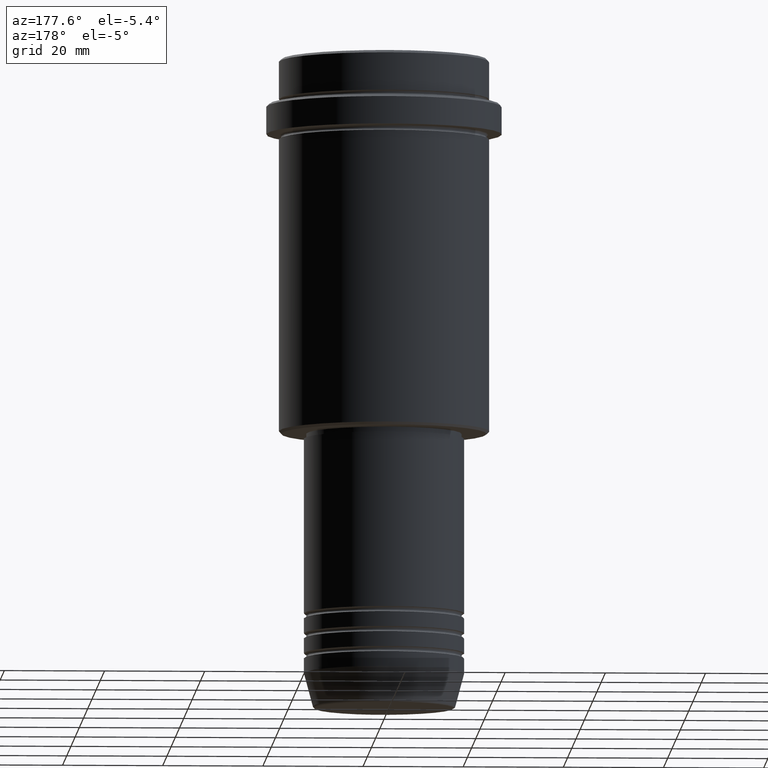
[diagram: clean part render]
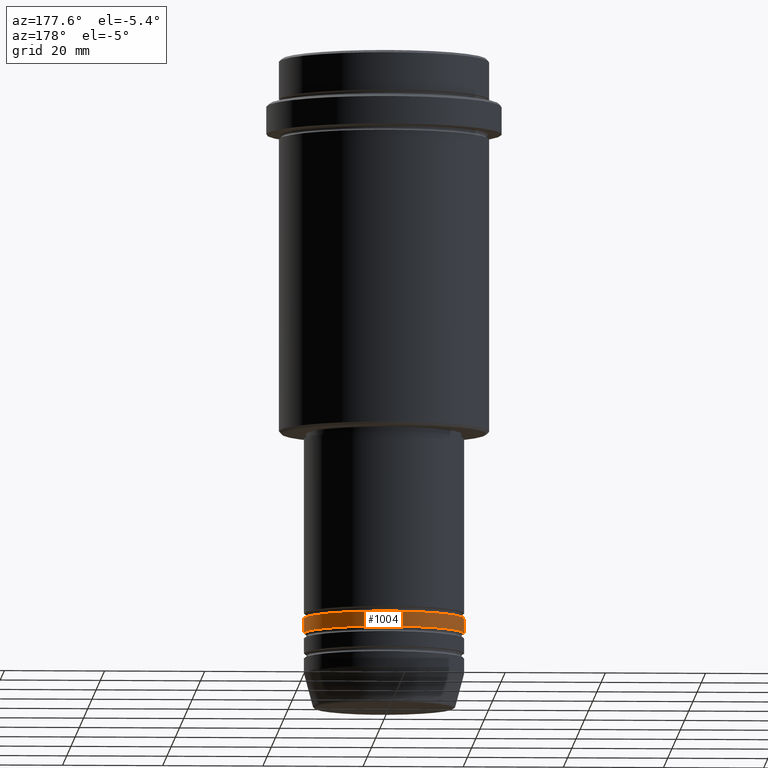
[diagram: same view with one face highlighted and labeled with its STEP entity id]
A machine part, auxiliary view. The second image highlights one B-rep face of the part: STEP entity #1004.
In plain terms, the highlighted cylindrical surface (partial cylindrical patch) has radius 16 mm, axis along (-0, -0, 1).
Its self-contained STEP definition (entity closure, byte-faithful):
#34 = CYLINDRICAL_SURFACE ( 'NONE', #861, 16.00000000000000000 ) ;
#52 = VECTOR ( 'NONE', #1120, 1000.000000000000000 ) ;
#122 = CARTESIAN_POINT ( 'NONE',  ( -16.00000000000000000, 1.959434878635765131E-15, 0.000000000000000000 ) ) ;
#124 = CIRCLE ( 'NONE', #790, 16.00000000000000000 ) ;
#215 = AXIS2_PLACEMENT_3D ( 'NONE', #554, #994, #445 ) ;
#278 = VERTEX_POINT ( 'NONE', #829 ) ;
#316 = EDGE_LOOP ( 'NONE', ( #521, #1119, #771, #1185 ) ) ;
#342 = CARTESIAN_POINT ( 'NONE',  ( 16.00000000000000000, 0.000000000000000000, 0.000000000000000000 ) ) ;
#359 = CARTESIAN_POINT ( 'NONE',  ( 0.000000000000000000, 0.000000000000000000, 0.000000000000000000 ) ) ;
#430 = CARTESIAN_POINT ( 'NONE',  ( -16.00000000000000000, 1.959434878635765131E-15, -114.9999999999999005 ) ) ;
#445 = DIRECTION ( 'NONE',  ( 1.000000000000000000, 0.000000000000000000, 0.000000000000000000 ) ) ;
#454 = VERTEX_POINT ( 'NONE', #430 ) ;
#455 = LINE ( 'NONE', #342, #721 ) ;
#521 = ORIENTED_EDGE ( 'NONE', *, *, #640, .T. ) ;
#539 = CARTESIAN_POINT ( 'NONE',  ( 16.00000000000000000, 0.000000000000000000, -114.9999999999999005 ) ) ;
#554 = CARTESIAN_POINT ( 'NONE',  ( 0.000000000000000000, 0.000000000000000000, -111.9999999999998863 ) ) ;
#585 = CARTESIAN_POINT ( 'NONE',  ( 0.000000000000000000, 0.000000000000000000, -114.9999999999999005 ) ) ;
#593 = LINE ( 'NONE', #122, #52 ) ;
#611 = EDGE_CURVE ( 'NONE', #454, #278, #593, .T. ) ;
#640 = EDGE_CURVE ( 'NONE', #1286, #454, #124, .T. ) ;
#693 = DIRECTION ( 'NONE',  ( 1.000000000000000000, 0.000000000000000000, 0.000000000000000000 ) ) ;
#721 = VECTOR ( 'NONE', #1217, 1000.000000000000000 ) ;
#771 = ORIENTED_EDGE ( 'NONE', *, *, #1091, .F. ) ;
#786 = CARTESIAN_POINT ( 'NONE',  ( 16.00000000000000000, 0.000000000000000000, -111.9999999999998863 ) ) ;
#790 = AXIS2_PLACEMENT_3D ( 'NONE', #585, #1135, #903 ) ;
#829 = CARTESIAN_POINT ( 'NONE',  ( -16.00000000000000000, 1.959434878635765131E-15, -111.9999999999998863 ) ) ;
#861 = AXIS2_PLACEMENT_3D ( 'NONE', #359, #1326, #693 ) ;
#903 = DIRECTION ( 'NONE',  ( 1.000000000000000000, 0.000000000000000000, 0.000000000000000000 ) ) ;
#994 = DIRECTION ( 'NONE',  ( -0.000000000000000000, -0.000000000000000000, 1.000000000000000000 ) ) ;
#1004 = ADVANCED_FACE ( 'NONE', ( #1118 ), #34, .T. ) ;
#1076 = VERTEX_POINT ( 'NONE', #786 ) ;
#1091 = EDGE_CURVE ( 'NONE', #1076, #278, #1225, .T. ) ;
#1103 = EDGE_CURVE ( 'NONE', #1286, #1076, #455, .T. ) ;
#1118 = FACE_OUTER_BOUND ( 'NONE', #316, .T. ) ;
#1119 = ORIENTED_EDGE ( 'NONE', *, *, #611, .T. ) ;
#1120 = DIRECTION ( 'NONE',  ( -0.000000000000000000, -0.000000000000000000, 1.000000000000000000 ) ) ;
#1135 = DIRECTION ( 'NONE',  ( -0.000000000000000000, -0.000000000000000000, 1.000000000000000000 ) ) ;
#1185 = ORIENTED_EDGE ( 'NONE', *, *, #1103, .F. ) ;
#1217 = DIRECTION ( 'NONE',  ( -0.000000000000000000, -0.000000000000000000, 1.000000000000000000 ) ) ;
#1225 = CIRCLE ( 'NONE', #215, 16.00000000000000000 ) ;
#1286 = VERTEX_POINT ( 'NONE', #539 ) ;
#1326 = DIRECTION ( 'NONE',  ( -0.000000000000000000, -0.000000000000000000, 1.000000000000000000 ) ) ;